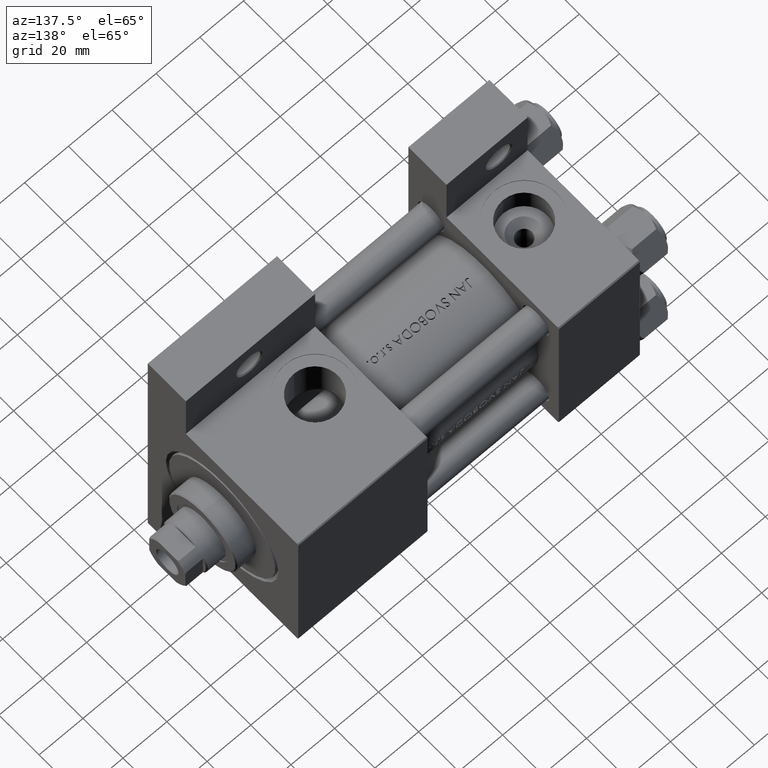
[diagram: clean part render]
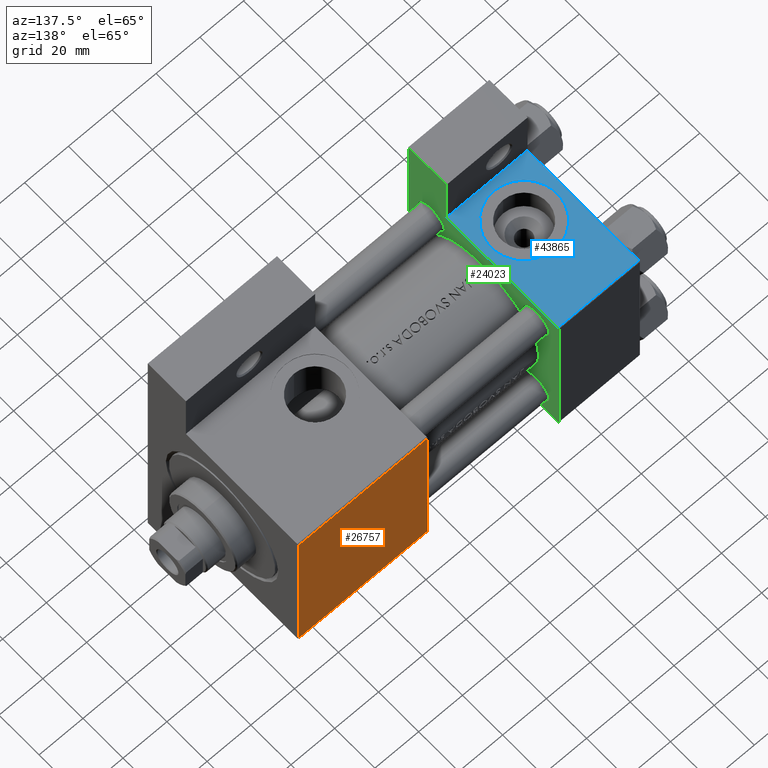
[diagram: same view with three faces highlighted in distinct colors, each labeled with its STEP entity id]
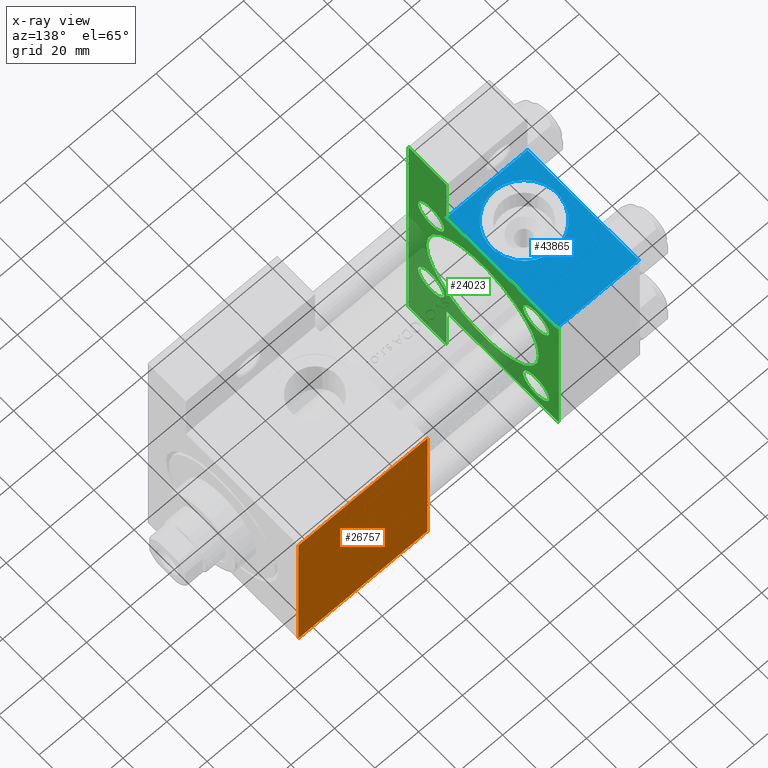
[diagram: x-ray of the same camera — body ghosted, the three highlighted faces saturated]
A machine part, auxiliary view with three faces highlighted in distinct colors.
The next image is the same camera in x-ray (body ghosted, the three faces saturated) — at least one of them is partly hidden behind the body in this view.
Their STEP definitions:

[orange] entity #26757 — the highlighted planar face has unit normal (0, -1, -0).
#698 = CARTESIAN_POINT ( 'NONE',  ( 156.0000000000000000, 37.00000000000000000, 37.49999999999999289 ) ) ;
#2310 = EDGE_CURVE ( 'NONE', #6808, #14022, #32556, .T. ) ;
#6808 = VERTEX_POINT ( 'NONE', #47626 ) ;
#9399 = CARTESIAN_POINT ( 'NONE',  ( 156.0000000000000000, -36.99999999999997158, 37.49999999999997868 ) ) ;
#9480 = ORIENTED_EDGE ( 'NONE', *, *, #22118, .F. ) ;
#10447 = EDGE_CURVE ( 'NONE', #14022, #32340, #36572, .T. ) ;
#11582 = ORIENTED_EDGE ( 'NONE', *, *, #2310, .T. ) ;
#13417 = CARTESIAN_POINT ( 'NONE',  ( 156.0000000000000000, 37.50000000000000000, 37.49999999999999289 ) ) ;
#13849 = EDGE_LOOP ( 'NONE', ( #9480, #27788, #11582, #41570 ) ) ;
#14022 = VERTEX_POINT ( 'NONE', #25665 ) ;
#14355 = CARTESIAN_POINT ( 'NONE',  ( 97.00000000000000000, 37.50000000000000000, 37.49999999999999289 ) ) ;
#16781 = AXIS2_PLACEMENT_3D ( 'NONE', #13417, #43343, #24411 ) ;
#18227 = VECTOR ( 'NONE', #36117, 1000.000000000000000 ) ;
#20549 = CARTESIAN_POINT ( 'NONE',  ( 97.00000000000000000, 37.00000000000000000, 37.49999999999999289 ) ) ;
#22118 = EDGE_CURVE ( 'NONE', #39857, #32340, #44827, .T. ) ;
#24202 = VECTOR ( 'NONE', #36078, 1000.000000000000000 ) ;
#24411 = DIRECTION ( 'NONE',  ( 0.000000000000000000, 1.000000000000000000, 1.850371707708594316E-16 ) ) ;
#24672 = CARTESIAN_POINT ( 'NONE',  ( 156.0000000000000000, -36.99999999999997158, 37.49999999999997868 ) ) ;
#25665 = CARTESIAN_POINT ( 'NONE',  ( 97.00000000000000000, -36.99999999999997158, 37.49999999999997868 ) ) ;
#26757 = ADVANCED_FACE ( 'NONE', ( #28162 ), #47557, .F. ) ;
#27788 = ORIENTED_EDGE ( 'NONE', *, *, #47263, .T. ) ;
#28162 = FACE_OUTER_BOUND ( 'NONE', #13849, .T. ) ;
#32340 = VERTEX_POINT ( 'NONE', #24672 ) ;
#32556 = LINE ( 'NONE', #14355, #47917 ) ;
#33757 = VECTOR ( 'NONE', #35738, 1000.000000000000000 ) ;
#35738 = DIRECTION ( 'NONE',  ( -1.000000000000000000, 0.000000000000000000, 0.000000000000000000 ) ) ;
#36078 = DIRECTION ( 'NONE',  ( 1.000000000000000000, 0.000000000000000000, 0.000000000000000000 ) ) ;
#36117 = DIRECTION ( 'NONE',  ( 0.000000000000000000, -1.000000000000000000, -1.850371707708594316E-16 ) ) ;
#36484 = LINE ( 'NONE', #20549, #33757 ) ;
#36572 = LINE ( 'NONE', #9399, #24202 ) ;
#39857 = VERTEX_POINT ( 'NONE', #698 ) ;
#41570 = ORIENTED_EDGE ( 'NONE', *, *, #10447, .T. ) ;
#43343 = DIRECTION ( 'NONE',  ( 0.000000000000000000, 1.850371707708594316E-16, -1.000000000000000000 ) ) ;
#44753 = DIRECTION ( 'NONE',  ( 0.000000000000000000, -1.000000000000000000, -1.850371707708594316E-16 ) ) ;
#44827 = LINE ( 'NONE', #48558, #18227 ) ;
#47263 = EDGE_CURVE ( 'NONE', #39857, #6808, #36484, .T. ) ;
#47557 = PLANE ( 'NONE',  #16781 ) ;
#47626 = CARTESIAN_POINT ( 'NONE',  ( 97.00000000000000000, 37.00000000000000000, 37.49999999999999289 ) ) ;
#47917 = VECTOR ( 'NONE', #44753, 1000.000000000000000 ) ;
#48558 = CARTESIAN_POINT ( 'NONE',  ( 156.0000000000000000, 37.50000000000000000, 37.49999999999999289 ) ) ;

[blue] entity #43865 — the highlighted planar face has unit normal (0, 0, -1).
#2562 = CARTESIAN_POINT ( 'NONE',  ( -7.145701223179000102E-16, -37.50000000000001421, -18.49999999999999645 ) ) ;
#2648 = EDGE_CURVE ( 'NONE', #17141, #38875, #40433, .T. ) ;
#3364 = LINE ( 'NONE', #41234, #4699 ) ;
#3619 = AXIS2_PLACEMENT_3D ( 'NONE', #42616, #31167, #31407 ) ;
#4014 = DIRECTION ( 'NONE',  ( 0.000000000000000000, -1.000000000000000000, -8.673617379884036705E-17 ) ) ;
#4699 = VECTOR ( 'NONE', #14565, 1000.000000000000000 ) ;
#5012 = VECTOR ( 'NONE', #44661, 1000.000000000000000 ) ;
#7337 = VECTOR ( 'NONE', #7771, 1000.000000000000000 ) ;
#7771 = DIRECTION ( 'NONE',  ( 0.000000000000000000, 9.251858538542971581E-17, -1.000000000000000000 ) ) ;
#10261 = CIRCLE ( 'NONE', #29358, 15.00000000000000178 ) ;
#10769 = ORIENTED_EDGE ( 'NONE', *, *, #11543, .F. ) ;
#11495 = CIRCLE ( 'NONE', #3619, 15.00000000000000178 ) ;
#11543 = EDGE_CURVE ( 'NONE', #31530, #42854, #11495, .T. ) ;
#13131 = LINE ( 'NONE', #13623, #49213 ) ;
#13623 = CARTESIAN_POINT ( 'NONE',  ( 37.00000000000000000, -37.50000000000000711, 36.99999999999999289 ) ) ;
#14565 = DIRECTION ( 'NONE',  ( 0.000000000000000000, 9.251858538542971581E-17, -1.000000000000000000 ) ) ;
#15326 = FACE_BOUND ( 'NONE', #23799, .T. ) ;
#17132 = EDGE_CURVE ( 'NONE', #17141, #17387, #13131, .T. ) ;
#17141 = VERTEX_POINT ( 'NONE', #24862 ) ;
#17387 = VERTEX_POINT ( 'NONE', #46254 ) ;
#18067 = ORIENTED_EDGE ( 'NONE', *, *, #17132, .T. ) ;
#18630 = EDGE_CURVE ( 'NONE', #17387, #39641, #3364, .T. ) ;
#18635 = ORIENTED_EDGE ( 'NONE', *, *, #18630, .T. ) ;
#19554 = CARTESIAN_POINT ( 'NONE',  ( 18.50000000000000355, -37.50000000000000711, 14.99999999999999822 ) ) ;
#20343 = ORIENTED_EDGE ( 'NONE', *, *, #30252, .F. ) ;
#21101 = CARTESIAN_POINT ( 'NONE',  ( 18.50000000000000000, -37.50000000000000711, -15.00000000000000533 ) ) ;
#21499 = CARTESIAN_POINT ( 'NONE',  ( 37.00000000000000000, -37.50000000000000711, 37.49999999999999289 ) ) ;
#22483 = DIRECTION ( 'NONE',  ( 0.000000000000000000, -9.251858538542971581E-17, 1.000000000000000000 ) ) ;
#23799 = EDGE_LOOP ( 'NONE', ( #10769, #20343 ) ) ;
#24459 = CARTESIAN_POINT ( 'NONE',  ( 37.00000000000000000, -37.50000000000000000, -18.50000000000000355 ) ) ;
#24862 = CARTESIAN_POINT ( 'NONE',  ( 37.00000000000000000, -37.50000000000000711, 36.99999999999999289 ) ) ;
#25493 = LINE ( 'NONE', #2562, #5012 ) ;
#29358 = AXIS2_PLACEMENT_3D ( 'NONE', #38135, #4014, #34410 ) ;
#29486 = CARTESIAN_POINT ( 'NONE',  ( 37.00000000000000000, -37.50000000000000711, 37.49999999999999289 ) ) ;
#30252 = EDGE_CURVE ( 'NONE', #42854, #31530, #10261, .T. ) ;
#30556 = FACE_OUTER_BOUND ( 'NONE', #39346, .T. ) ;
#31167 = DIRECTION ( 'NONE',  ( 0.000000000000000000, -1.000000000000000000, -8.673617379884036705E-17 ) ) ;
#31407 = DIRECTION ( 'NONE',  ( 0.000000000000000000, 0.000000000000000000, -1.000000000000000000 ) ) ;
#31530 = VERTEX_POINT ( 'NONE', #21101 ) ;
#34410 = DIRECTION ( 'NONE',  ( 0.000000000000000000, 0.000000000000000000, -1.000000000000000000 ) ) ;
#38135 = CARTESIAN_POINT ( 'NONE',  ( 18.50000000000000000, -37.50000000000000711, -3.469446951953614978E-15 ) ) ;
#38875 = VERTEX_POINT ( 'NONE', #24459 ) ;
#39346 = EDGE_LOOP ( 'NONE', ( #40923, #47898, #18067, #18635 ) ) ;
#39641 = VERTEX_POINT ( 'NONE', #45626 ) ;
#39808 = DIRECTION ( 'NONE',  ( -1.000000000000000000, 0.000000000000000000, 0.000000000000000000 ) ) ;
#40433 = LINE ( 'NONE', #21499, #7337 ) ;
#40923 = ORIENTED_EDGE ( 'NONE', *, *, #44390, .F. ) ;
#41234 = CARTESIAN_POINT ( 'NONE',  ( 0.000000000000000000, -37.50000000000000711, 37.49999999999999289 ) ) ;
#42616 = CARTESIAN_POINT ( 'NONE',  ( 18.50000000000000000, -37.50000000000000711, -3.469446951953614978E-15 ) ) ;
#42854 = VERTEX_POINT ( 'NONE', #19554 ) ;
#43865 = ADVANCED_FACE ( 'NONE', ( #15326, #30556 ), #45742, .F. ) ;
#44390 = EDGE_CURVE ( 'NONE', #38875, #39641, #25493, .T. ) ;
#44661 = DIRECTION ( 'NONE',  ( -1.000000000000000000, 0.000000000000000000, 0.000000000000000000 ) ) ;
#45626 = CARTESIAN_POINT ( 'NONE',  ( -7.145701223179004046E-16, -37.50000000000000711, -18.50000000000000355 ) ) ;
#45742 = PLANE ( 'NONE',  #47956 ) ;
#46254 = CARTESIAN_POINT ( 'NONE',  ( 0.000000000000000000, -37.50000000000000711, 36.99999999999999289 ) ) ;
#47898 = ORIENTED_EDGE ( 'NONE', *, *, #2648, .F. ) ;
#47956 = AXIS2_PLACEMENT_3D ( 'NONE', #29486, #48889, #22483 ) ;
#48889 = DIRECTION ( 'NONE',  ( -0.000000000000000000, 1.000000000000000000, 9.251858538542971581E-17 ) ) ;
#49213 = VECTOR ( 'NONE', #39808, 1000.000000000000000 ) ;

[green] entity #24023 — the highlighted planar face has unit normal (-1, 0, -0).
#449 = DIRECTION ( 'NONE',  ( -1.000000000000000000, 0.000000000000000000, -0.000000000000000000 ) ) ;
#485 = LINE ( 'NONE', #15665, #2802 ) ;
#1438 = AXIS2_PLACEMENT_3D ( 'NONE', #31618, #35107, #26493 ) ;
#1490 = EDGE_CURVE ( 'NONE', #2646, #8498, #17520, .T. ) ;
#1848 = CARTESIAN_POINT ( 'NONE',  ( 37.00000000000000000, 37.49999999999999289, -37.50000000000000000 ) ) ;
#2073 = VERTEX_POINT ( 'NONE', #11211 ) ;
#2130 = DIRECTION ( 'NONE',  ( 1.000000000000000000, -0.000000000000000000, 0.000000000000000000 ) ) ;
#2646 = VERTEX_POINT ( 'NONE', #18481 ) ;
#2648 = EDGE_CURVE ( 'NONE', #17141, #38875, #40433, .T. ) ;
#2802 = VECTOR ( 'NONE', #30887, 1000.000000000000000 ) ;
#3341 = EDGE_CURVE ( 'NONE', #28767, #47075, #18537, .T. ) ;
#3345 = DIRECTION ( 'NONE',  ( -0.000000000000000000, -0.7071067811865474617, -0.7071067811865474617 ) ) ;
#3547 = CARTESIAN_POINT ( 'NONE',  ( 37.00000000000000000, 37.49999999999999289, 37.00000000000000000 ) ) ;
#3756 = CARTESIAN_POINT ( 'NONE',  ( 37.00000000000000000, 37.49999999999999289, 37.50000000000000000 ) ) ;
#3802 = DIRECTION ( 'NONE',  ( -1.000000000000000000, 0.000000000000000000, -0.000000000000000000 ) ) ;
#3817 = EDGE_LOOP ( 'NONE', ( #33802, #21690 ) ) ;
#3850 = VERTEX_POINT ( 'NONE', #18927 ) ;
#4181 = DIRECTION ( 'NONE',  ( 0.000000000000000000, 0.000000000000000000, 1.000000000000000000 ) ) ;
#4320 = AXIS2_PLACEMENT_3D ( 'NONE', #46982, #9107, #28803 ) ;
#4436 = VERTEX_POINT ( 'NONE', #20290 ) ;
#4660 = DIRECTION ( 'NONE',  ( 1.000000000000000000, -0.000000000000000000, 0.000000000000000000 ) ) ;
#5137 = EDGE_CURVE ( 'NONE', #2073, #38134, #24127, .T. ) ;
#5412 = DIRECTION ( 'NONE',  ( -1.000000000000000000, 0.000000000000000000, -0.000000000000000000 ) ) ;
#5665 = DIRECTION ( 'NONE',  ( 0.000000000000000000, -1.000000000000000000, -9.251858538542971581E-17 ) ) ;
#5734 = CARTESIAN_POINT ( 'NONE',  ( 37.00000000000000000, 26.14999999999999858, -19.65000000000000213 ) ) ;
#6139 = EDGE_LOOP ( 'NONE', ( #39188, #15679 ) ) ;
#6319 = DIRECTION ( 'NONE',  ( 0.000000000000000000, -1.000000000000000000, -9.251858538542972814E-17 ) ) ;
#6438 = ORIENTED_EDGE ( 'NONE', *, *, #45765, .F. ) ;
#6923 = VECTOR ( 'NONE', #33196, 1000.000000000000114 ) ;
#7337 = VECTOR ( 'NONE', #7771, 1000.000000000000000 ) ;
#7453 = VECTOR ( 'NONE', #22185, 1000.000000000000000 ) ;
#7666 = DIRECTION ( 'NONE',  ( 0.000000000000000000, 0.000000000000000000, 1.000000000000000000 ) ) ;
#7771 = DIRECTION ( 'NONE',  ( 0.000000000000000000, 9.251858538542971581E-17, -1.000000000000000000 ) ) ;
#8068 = AXIS2_PLACEMENT_3D ( 'NONE', #11626, #4660, #4181 ) ;
#8498 = VERTEX_POINT ( 'NONE', #11791 ) ;
#8738 = VECTOR ( 'NONE', #5665, 1000.000000000000000 ) ;
#8792 = EDGE_CURVE ( 'NONE', #47075, #28767, #32921, .T. ) ;
#9040 = CIRCLE ( 'NONE', #4320, 6.500000000000057732 ) ;
#9107 = DIRECTION ( 'NONE',  ( -1.000000000000000000, 0.000000000000000000, -0.000000000000000000 ) ) ;
#9202 = LINE ( 'NONE', #16672, #22083 ) ;
#9386 = LINE ( 'NONE', #35567, #8738 ) ;
#9876 = CARTESIAN_POINT ( 'NONE',  ( 37.00000000000000000, 26.14999999999999858, -26.15000000000000213 ) ) ;
#9967 = CARTESIAN_POINT ( 'NONE',  ( 37.00000000000000000, -26.14999999999999147, -32.65000000000006963 ) ) ;
#10030 = VERTEX_POINT ( 'NONE', #9967 ) ;
#10751 = CARTESIAN_POINT ( 'NONE',  ( 37.00000000000000000, -26.14999999999999147, 26.15000000000000924 ) ) ;
#10768 = ORIENTED_EDGE ( 'NONE', *, *, #12421, .T. ) ;
#10896 = VERTEX_POINT ( 'NONE', #3547 ) ;
#10992 = DIRECTION ( 'NONE',  ( -0.000000000000000000, 0.000000000000000000, 1.000000000000000000 ) ) ;
#11100 = AXIS2_PLACEMENT_3D ( 'NONE', #41418, #33707, #10992 ) ;
#11211 = CARTESIAN_POINT ( 'NONE',  ( 37.00000000000000000, 26.14999999999999858, 19.64999999999999858 ) ) ;
#11624 = DIRECTION ( 'NONE',  ( 0.000000000000000000, 0.000000000000000000, 1.000000000000000000 ) ) ;
#11626 = CARTESIAN_POINT ( 'NONE',  ( 37.00000000000000000, 0.000000000000000000, -0.5000000000000004441 ) ) ;
#11791 = CARTESIAN_POINT ( 'NONE',  ( 37.00000000000000000, -63.50000000000000000, -37.49999999999999289 ) ) ;
#11815 = CARTESIAN_POINT ( 'NONE',  ( 37.00000000000000000, 36.99999999999999289, 37.50000000000000000 ) ) ;
#12384 = CARTESIAN_POINT ( 'NONE',  ( 37.00000000000000000, -26.14999999999999147, -26.15000000000000924 ) ) ;
#12421 = EDGE_CURVE ( 'NONE', #28407, #17141, #13801, .T. ) ;
#12430 = ORIENTED_EDGE ( 'NONE', *, *, #43254, .F. ) ;
#12494 = EDGE_LOOP ( 'NONE', ( #14895, #10768, #48174, #40334, #34871, #12654, #14945, #12430, #6438, #15678 ) ) ;
#12654 = ORIENTED_EDGE ( 'NONE', *, *, #1490, .F. ) ;
#13726 = EDGE_CURVE ( 'NONE', #10896, #25255, #17984, .T. ) ;
#13801 = LINE ( 'NONE', #44694, #27609 ) ;
#14895 = ORIENTED_EDGE ( 'NONE', *, *, #28812, .T. ) ;
#14945 = ORIENTED_EDGE ( 'NONE', *, *, #49127, .F. ) ;
#14997 = FACE_BOUND ( 'NONE', #35116, .T. ) ;
#15157 = EDGE_CURVE ( 'NONE', #25945, #38875, #9202, .T. ) ;
#15432 = EDGE_LOOP ( 'NONE', ( #15876, #41438 ) ) ;
#15665 = CARTESIAN_POINT ( 'NONE',  ( 37.00000000000001421, 63.50000000000001421, 26.72167621838005047 ) ) ;
#15678 = ORIENTED_EDGE ( 'NONE', *, *, #13726, .T. ) ;
#15679 = ORIENTED_EDGE ( 'NONE', *, *, #42657, .T. ) ;
#15876 = ORIENTED_EDGE ( 'NONE', *, *, #5137, .T. ) ;
#16672 = CARTESIAN_POINT ( 'NONE',  ( 37.00000000000000000, -63.49999999999998579, -18.50000000000000355 ) ) ;
#17141 = VERTEX_POINT ( 'NONE', #24862 ) ;
#17520 = LINE ( 'NONE', #1848, #39153 ) ;
#17887 = VERTEX_POINT ( 'NONE', #5734 ) ;
#17984 = LINE ( 'NONE', #48139, #6923 ) ;
#17992 = FACE_BOUND ( 'NONE', #3817, .T. ) ;
#18233 = FACE_BOUND ( 'NONE', #44027, .T. ) ;
#18367 = CIRCLE ( 'NONE', #8068, 28.00000000000000000 ) ;
#18481 = CARTESIAN_POINT ( 'NONE',  ( 37.00000000000001421, 63.50000000000000000, -37.50000000000002132 ) ) ;
#18537 = CIRCLE ( 'NONE', #46407, 6.500000000000064837 ) ;
#18927 = CARTESIAN_POINT ( 'NONE',  ( 37.00000000000000000, 0.000000000000000000, 27.50000000000000000 ) ) ;
#18972 = EDGE_CURVE ( 'NONE', #17887, #22443, #30886, .T. ) ;
#19838 = LINE ( 'NONE', #28304, #25725 ) ;
#20290 = CARTESIAN_POINT ( 'NONE',  ( 37.00000000000001421, 63.50000000000000000, -18.50000000000000355 ) ) ;
#21172 = DIRECTION ( 'NONE',  ( -0.000000000000000000, 1.000000000000000000, 0.000000000000000000 ) ) ;
#21266 = EDGE_CURVE ( 'NONE', #10030, #38025, #34148, .T. ) ;
#21461 = EDGE_CURVE ( 'NONE', #22443, #17887, #38120, .T. ) ;
#21499 = CARTESIAN_POINT ( 'NONE',  ( 37.00000000000000000, -37.50000000000000711, 37.49999999999999289 ) ) ;
#21690 = ORIENTED_EDGE ( 'NONE', *, *, #18972, .T. ) ;
#22083 = VECTOR ( 'NONE', #21172, 1000.000000000000000 ) ;
#22185 = DIRECTION ( 'NONE',  ( 0.000000000000000000, 0.000000000000000000, -1.000000000000000000 ) ) ;
#22330 = CARTESIAN_POINT ( 'NONE',  ( 37.00000000000000000, -26.14999999999999147, 19.64999999999994529 ) ) ;
#22443 = VERTEX_POINT ( 'NONE', #33071 ) ;
#22605 = CARTESIAN_POINT ( 'NONE',  ( 37.00000000000000000, 3.429011037612589276E-15, -28.50000000000000000 ) ) ;
#23372 = AXIS2_PLACEMENT_3D ( 'NONE', #36260, #2130, #25064 ) ;
#23909 = CARTESIAN_POINT ( 'NONE',  ( 37.00000000000000711, 37.50000000000000711, -18.50000000000000355 ) ) ;
#24017 = EDGE_CURVE ( 'NONE', #38134, #2073, #32598, .T. ) ;
#24023 = ADVANCED_FACE ( 'NONE', ( #29982, #17992, #18233, #48386, #14997, #45150 ), #41918, .F. ) ;
#24127 = CIRCLE ( 'NONE', #29631, 6.500000000000008882 ) ;
#24459 = CARTESIAN_POINT ( 'NONE',  ( 37.00000000000000000, -37.50000000000000000, -18.50000000000000355 ) ) ;
#24769 = ORIENTED_EDGE ( 'NONE', *, *, #8792, .T. ) ;
#24862 = CARTESIAN_POINT ( 'NONE',  ( 37.00000000000000000, -37.50000000000000711, 36.99999999999999289 ) ) ;
#25064 = DIRECTION ( 'NONE',  ( 0.000000000000000000, 0.000000000000000000, 1.000000000000000000 ) ) ;
#25255 = VERTEX_POINT ( 'NONE', #11815 ) ;
#25725 = VECTOR ( 'NONE', #35039, 1000.000000000000000 ) ;
#25739 = DIRECTION ( 'NONE',  ( 0.000000000000000000, 0.000000000000000000, 1.000000000000000000 ) ) ;
#25840 = VERTEX_POINT ( 'NONE', #23909 ) ;
#25945 = VERTEX_POINT ( 'NONE', #43330 ) ;
#25957 = ORIENTED_EDGE ( 'NONE', *, *, #3341, .T. ) ;
#25983 = CARTESIAN_POINT ( 'NONE',  ( 37.00000000000000000, -37.00000000000000711, 37.49999999999999289 ) ) ;
#26493 = DIRECTION ( 'NONE',  ( 0.000000000000000000, 0.000000000000000000, 1.000000000000000000 ) ) ;
#26633 = CARTESIAN_POINT ( 'NONE',  ( 37.00000000000000000, 26.14999999999999858, 26.15000000000000213 ) ) ;
#26731 = CARTESIAN_POINT ( 'NONE',  ( 37.00000000000000000, 26.14999999999999858, 26.15000000000000213 ) ) ;
#26997 = CARTESIAN_POINT ( 'NONE',  ( 37.00000000000001421, 63.50000000000001421, -18.50000000000000355 ) ) ;
#27139 = DIRECTION ( 'NONE',  ( 0.000000000000000000, 0.000000000000000000, 1.000000000000000000 ) ) ;
#27609 = VECTOR ( 'NONE', #3345, 1000.000000000000114 ) ;
#27869 = CARTESIAN_POINT ( 'NONE',  ( 37.00000000000000000, -26.14999999999999147, 32.65000000000007674 ) ) ;
#28304 = CARTESIAN_POINT ( 'NONE',  ( 37.00000000000000000, -63.49999999999998579, 26.72167621838007889 ) ) ;
#28407 = VERTEX_POINT ( 'NONE', #25983 ) ;
#28767 = VERTEX_POINT ( 'NONE', #27869 ) ;
#28803 = DIRECTION ( 'NONE',  ( 0.000000000000000000, 0.000000000000000000, 1.000000000000000000 ) ) ;
#28812 = EDGE_CURVE ( 'NONE', #25255, #28407, #9386, .T. ) ;
#29385 = AXIS2_PLACEMENT_3D ( 'NONE', #9876, #5412, #47745 ) ;
#29631 = AXIS2_PLACEMENT_3D ( 'NONE', #26633, #449, #7666 ) ;
#29863 = VERTEX_POINT ( 'NONE', #22605 ) ;
#29982 = FACE_BOUND ( 'NONE', #6139, .T. ) ;
#30251 = AXIS2_PLACEMENT_3D ( 'NONE', #26731, #3802, #33202 ) ;
#30428 = LINE ( 'NONE', #3756, #7453 ) ;
#30672 = ORIENTED_EDGE ( 'NONE', *, *, #41523, .F. ) ;
#30741 = CARTESIAN_POINT ( 'NONE',  ( 37.00000000000000000, -26.14999999999999147, -19.64999999999995239 ) ) ;
#30886 = CIRCLE ( 'NONE', #1438, 6.500000000000002665 ) ;
#30887 = DIRECTION ( 'NONE',  ( 0.000000000000000000, -1.734723475976806848E-16, -1.000000000000000000 ) ) ;
#31087 = DIRECTION ( 'NONE',  ( -1.000000000000000000, 0.000000000000000000, -0.000000000000000000 ) ) ;
#31618 = CARTESIAN_POINT ( 'NONE',  ( 37.00000000000000000, 26.14999999999999858, -26.15000000000000213 ) ) ;
#32598 = CIRCLE ( 'NONE', #30251, 6.500000000000008882 ) ;
#32921 = CIRCLE ( 'NONE', #46467, 6.500000000000064837 ) ;
#33071 = CARTESIAN_POINT ( 'NONE',  ( 37.00000000000000000, 26.14999999999999858, -32.65000000000000568 ) ) ;
#33196 = DIRECTION ( 'NONE',  ( 0.000000000000000000, -0.7071067811865474617, 0.7071067811865474617 ) ) ;
#33202 = DIRECTION ( 'NONE',  ( 0.000000000000000000, 0.000000000000000000, 1.000000000000000000 ) ) ;
#33704 = DIRECTION ( 'NONE',  ( -1.000000000000000000, 0.000000000000000000, -0.000000000000000000 ) ) ;
#33707 = DIRECTION ( 'NONE',  ( -1.000000000000000000, 0.000000000000000000, -0.000000000000000000 ) ) ;
#33802 = ORIENTED_EDGE ( 'NONE', *, *, #21461, .T. ) ;
#34148 = CIRCLE ( 'NONE', #43657, 6.500000000000057732 ) ;
#34871 = ORIENTED_EDGE ( 'NONE', *, *, #44012, .T. ) ;
#35039 = DIRECTION ( 'NONE',  ( 0.000000000000000000, -1.734723475976806848E-16, -1.000000000000000000 ) ) ;
#35107 = DIRECTION ( 'NONE',  ( -1.000000000000000000, 0.000000000000000000, -0.000000000000000000 ) ) ;
#35116 = EDGE_LOOP ( 'NONE', ( #30672, #38829 ) ) ;
#35567 = CARTESIAN_POINT ( 'NONE',  ( 37.00000000000000000, 37.49999999999999289, 37.50000000000000000 ) ) ;
#36260 = CARTESIAN_POINT ( 'NONE',  ( 37.00000000000000000, 0.000000000000000000, -0.5000000000000004441 ) ) ;
#36445 = EDGE_CURVE ( 'NONE', #29863, #3850, #18367, .T. ) ;
#37562 = CARTESIAN_POINT ( 'NONE',  ( 37.00000000000000000, -26.14999999999999147, 26.15000000000000924 ) ) ;
#38025 = VERTEX_POINT ( 'NONE', #30741 ) ;
#38120 = CIRCLE ( 'NONE', #29385, 6.500000000000002665 ) ;
#38134 = VERTEX_POINT ( 'NONE', #40015 ) ;
#38829 = ORIENTED_EDGE ( 'NONE', *, *, #36445, .F. ) ;
#38875 = VERTEX_POINT ( 'NONE', #24459 ) ;
#39153 = VECTOR ( 'NONE', #6319, 1000.000000000000000 ) ;
#39188 = ORIENTED_EDGE ( 'NONE', *, *, #21266, .T. ) ;
#40015 = CARTESIAN_POINT ( 'NONE',  ( 37.00000000000000000, 26.14999999999999858, 32.65000000000001279 ) ) ;
#40334 = ORIENTED_EDGE ( 'NONE', *, *, #15157, .F. ) ;
#40433 = LINE ( 'NONE', #21499, #7337 ) ;
#40911 = VECTOR ( 'NONE', #42177, 1000.000000000000000 ) ;
#41418 = CARTESIAN_POINT ( 'NONE',  ( 37.00000000000000000, 0.000000000000000000, 0.000000000000000000 ) ) ;
#41438 = ORIENTED_EDGE ( 'NONE', *, *, #24017, .T. ) ;
#41523 = EDGE_CURVE ( 'NONE', #3850, #29863, #44062, .T. ) ;
#41918 = PLANE ( 'NONE',  #11100 ) ;
#42177 = DIRECTION ( 'NONE',  ( 2.668805347656626678E-16, 1.000000000000000000, 0.000000000000000000 ) ) ;
#42562 = DIRECTION ( 'NONE',  ( -1.000000000000000000, 0.000000000000000000, -0.000000000000000000 ) ) ;
#42657 = EDGE_CURVE ( 'NONE', #38025, #10030, #9040, .T. ) ;
#43254 = EDGE_CURVE ( 'NONE', #25840, #4436, #45911, .T. ) ;
#43330 = CARTESIAN_POINT ( 'NONE',  ( 37.00000000000000000, -63.50000000000000000, -18.50000000000000355 ) ) ;
#43657 = AXIS2_PLACEMENT_3D ( 'NONE', #12384, #42562, #27139 ) ;
#44012 = EDGE_CURVE ( 'NONE', #25945, #8498, #19838, .T. ) ;
#44027 = EDGE_LOOP ( 'NONE', ( #24769, #25957 ) ) ;
#44062 = CIRCLE ( 'NONE', #23372, 28.00000000000000000 ) ;
#44694 = CARTESIAN_POINT ( 'NONE',  ( 37.00000000000000000, -37.50000000000000711, 36.99999999999999289 ) ) ;
#45150 = FACE_OUTER_BOUND ( 'NONE', #12494, .T. ) ;
#45765 = EDGE_CURVE ( 'NONE', #10896, #25840, #30428, .T. ) ;
#45911 = LINE ( 'NONE', #26997, #40911 ) ;
#46407 = AXIS2_PLACEMENT_3D ( 'NONE', #37562, #31087, #11624 ) ;
#46467 = AXIS2_PLACEMENT_3D ( 'NONE', #10751, #33704, #25739 ) ;
#46982 = CARTESIAN_POINT ( 'NONE',  ( 37.00000000000000000, -26.14999999999999147, -26.15000000000000924 ) ) ;
#47075 = VERTEX_POINT ( 'NONE', #22330 ) ;
#47745 = DIRECTION ( 'NONE',  ( 0.000000000000000000, 0.000000000000000000, 1.000000000000000000 ) ) ;
#48139 = CARTESIAN_POINT ( 'NONE',  ( 37.00000000000000000, 36.99999999999999289, 37.50000000000000000 ) ) ;
#48174 = ORIENTED_EDGE ( 'NONE', *, *, #2648, .T. ) ;
#48386 = FACE_BOUND ( 'NONE', #15432, .T. ) ;
#49127 = EDGE_CURVE ( 'NONE', #4436, #2646, #485, .T. ) ;